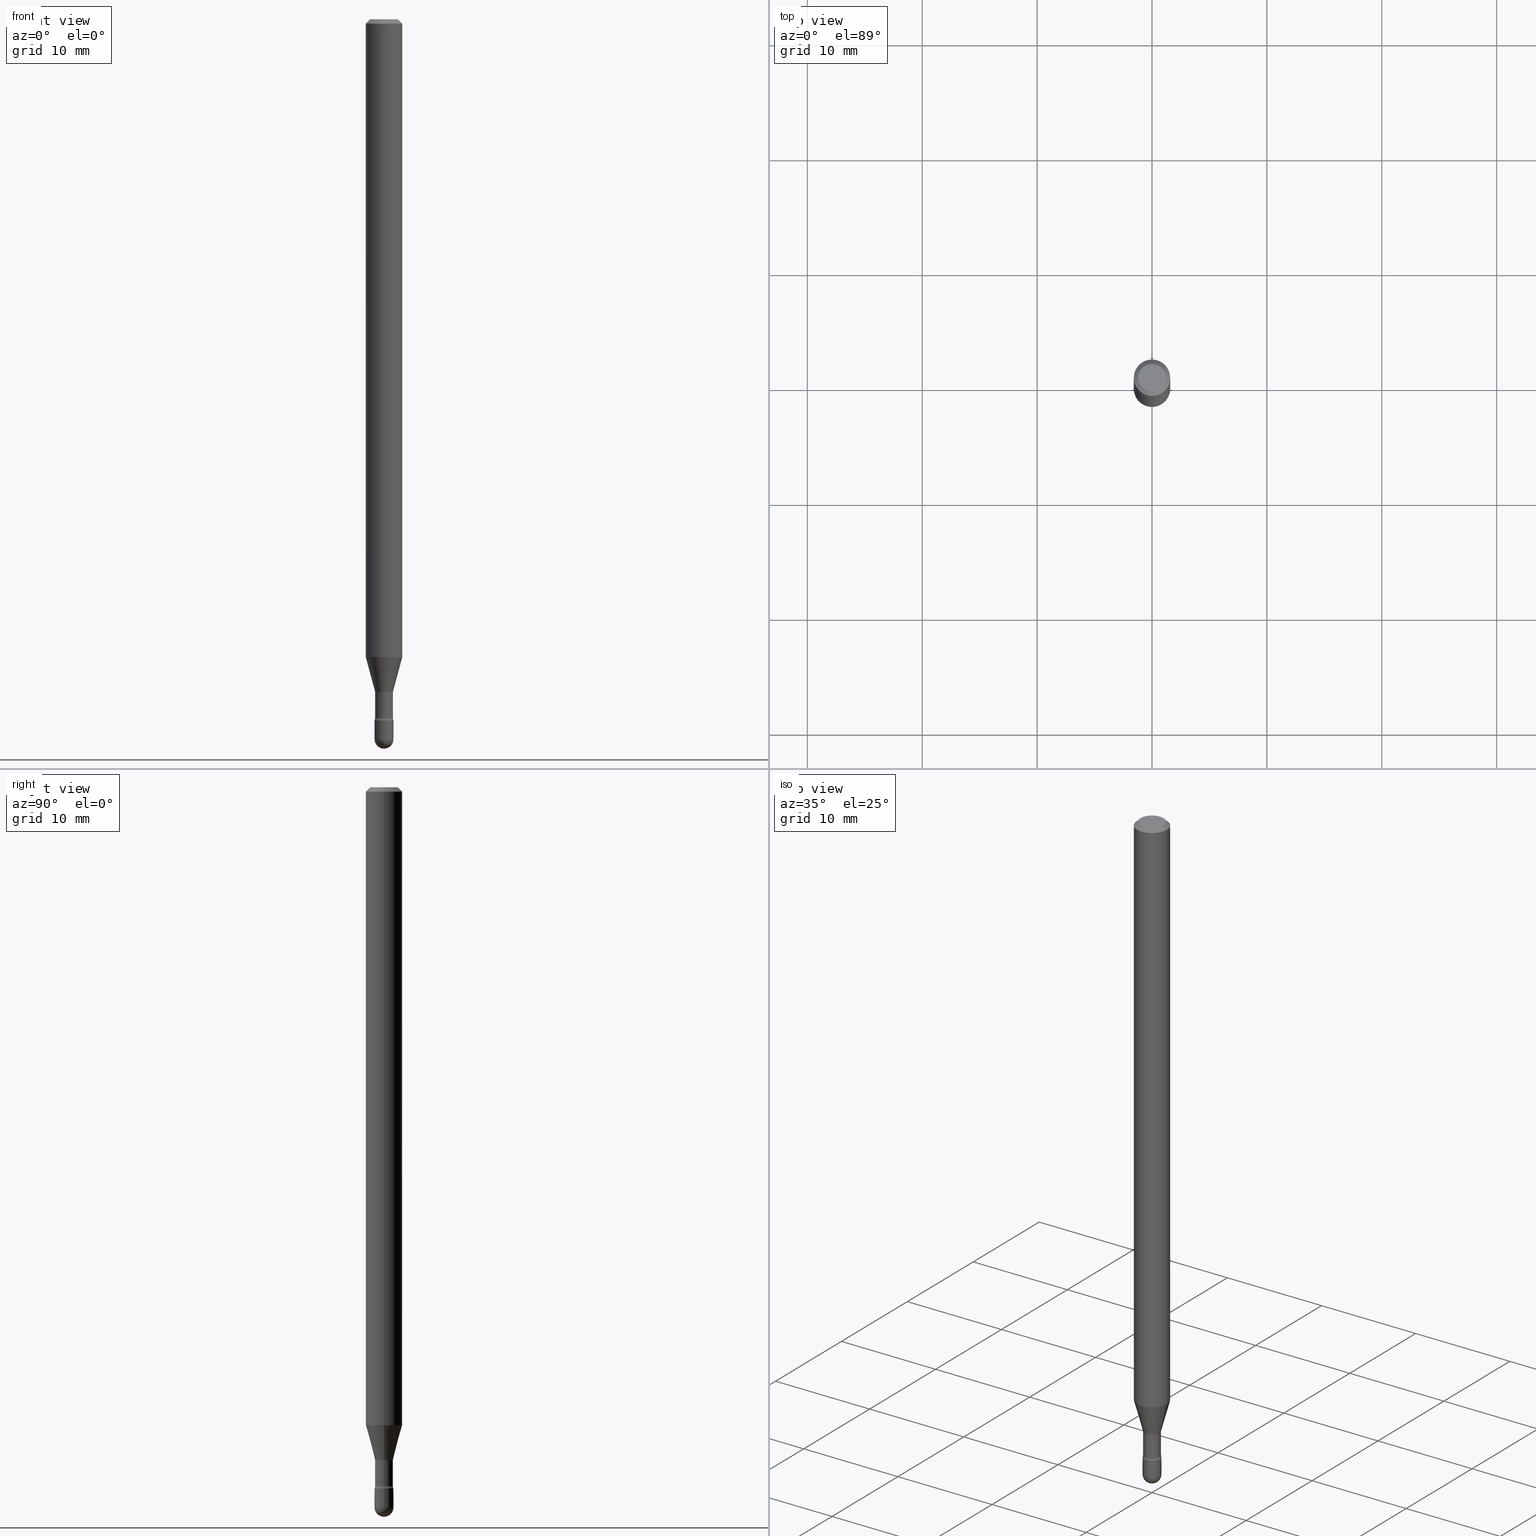
[diagram: canonical four-view strip — front | top / right | iso, engineering-drawing reading convention]
A machine part, canonical four-view strip (front | top / right | iso — engineering-drawing reading convention). The complete STEP part file that produces these views, byte-faithful:
ISO-10303-21;
HEADER;
FILE_DESCRIPTION (( 'STEP AP203' ),
    '1' );
FILE_NAME ('09508.STEP',
    '2024-04-10T00:01:44',
    ( '' ),
    ( '' ),
    'SwSTEP 2.0',
    'SolidWorks 2023',
    '' );
FILE_SCHEMA (( 'CONFIG_CONTROL_DESIGN' ));
ENDSEC;

DATA;
#1 = ORIENTED_EDGE ( 'NONE', *, *, #547, .F. ) ;
#2 = SECURITY_CLASSIFICATION ( '', '', #159 ) ;
#3 = CARTESIAN_POINT ( 'NONE',  ( -0.03249999999999995948, -8.155611786779205250E-15, -2.402000000000000135 ) ) ;
#4 = EDGE_CURVE ( 'NONE', #524, #161, #263, .T. ) ;
#5 = DIRECTION ( 'NONE',  ( -2.445468806185136877E-29, 3.491481338843145188E-15, 1.000000000000000000 ) ) ;
#6 = VERTEX_POINT ( 'NONE', #3 ) ;
#7 = FACE_OUTER_BOUND ( 'NONE', #240, .T. ) ;
#8 = TOROIDAL_SURFACE ( 'NONE', #321, 0.04555000000000000021, 0.01500000000000002373 ) ;
#9 = CONICAL_SURFACE ( 'NONE', #374, 0.03106111260566398607, 0.2617993877991497409 ) ;
#10 = EDGE_CURVE ( 'NONE', #526, #367, #224, .T. ) ;
#11 = DIRECTION ( 'NONE',  ( 1.000000000000000000, -6.982962677686267499E-15, 4.876176775795936353E-29 ) ) ;
#12 = DIRECTION ( 'NONE',  ( -1.000000000000000000, 6.982962677686266711E-15, 0.000000000000000000 ) ) ;
#13 = DIRECTION ( 'NONE',  ( -2.445468806185136597E-29, 3.491481338843145583E-15, 1.000000000000000000 ) ) ;
#14 = PRODUCT_DEFINITION_SHAPE ( 'NONE', 'NONE',  #469 ) ;
#15 = CARTESIAN_POINT ( 'NONE',  ( 0.03055000000000004240, -2.133295098033140716E-16, 4.780733988912475916E-16 ) ) ;
#16 = DIRECTION ( 'NONE',  ( -2.445468806185136597E-29, 3.491481338843145583E-15, 1.000000000000000000 ) ) ;
#17 = ORIENTED_EDGE ( 'NONE', *, *, #371, .F. ) ;
#18 = EDGE_CURVE ( 'NONE', #112, #161, #554, .T. ) ;
#19 = AXIS2_PLACEMENT_3D ( 'NONE', #236, #285, #12 ) ;
#20 = AXIS2_PLACEMENT_3D ( 'NONE', #448, #449, #398 ) ;
#21 = VECTOR ( 'NONE', #127, 39.37007874015748143 ) ;
#22 = DIRECTION ( 'NONE',  ( 2.438088387897960049E-29, -3.491481338843145188E-15, -1.000000000000000000 ) ) ;
#23 = PERSON_AND_ORGANIZATION ( #212, #530 ) ;
#24 = CARTESIAN_POINT ( 'NONE',  ( 5.855929933387994717E-29, -8.360715962634647749E-15, -2.394604224178627838 ) ) ;
#25 = TOROIDAL_SURFACE ( 'NONE', #519, 0.04555000000000000715, 0.01499999999999992138 ) ;
#26 = EDGE_CURVE ( 'NONE', #392, #161, #287, .T. ) ;
#27 =( NAMED_UNIT ( * ) SI_UNIT ( $, .STERADIAN. ) SOLID_ANGLE_UNIT ( ) );
#28 = CARTESIAN_POINT ( 'NONE',  ( 0.03106111260566398607, -8.258103081672599750E-15, -2.303092501787273427 ) ) ;
#29 = CARTESIAN_POINT ( 'NONE',  ( 2.269462870248623692E-16, 0.03249999999999161199, -2.402000000000000135 ) ) ;
#30 = PERSON_AND_ORGANIZATION ( #212, #530 ) ;
#31 = ORIENTED_EDGE ( 'NONE', *, *, #4, .T. ) ;
#32 = DIRECTION ( 'NONE',  ( 1.000000000000000000, -6.982962677686265922E-15, 4.876176775795935793E-29 ) ) ;
#33 = ORIENTED_EDGE ( 'NONE', *, *, #4, .F. ) ;
#34 = ADVANCED_FACE ( 'NONE', ( #75 ), #416, .F. ) ;
#35 = CARTESIAN_POINT ( 'NONE',  ( 0.03249999999999995948, -8.613484462926039396E-15, -2.402000000000000135 ) ) ;
#36 = APPROVAL_STATUS ( 'not_yet_approved' ) ;
#37 = CIRCLE ( 'NONE', #319, 0.03250000000000000111 ) ;
#38 = CARTESIAN_POINT ( 'NONE',  ( 5.855929933387994717E-29, -8.360715962634647749E-15, -2.394604224178627838 ) ) ;
#39 = AXIS2_PLACEMENT_3D ( 'NONE', #402, #498, #198 ) ;
#40 = DIRECTION ( 'NONE',  ( -2.445468806185136597E-29, 3.491481338843145583E-15, 1.000000000000000000 ) ) ;
#41 = FACE_OUTER_BOUND ( 'NONE', #375, .T. ) ;
#42 = ORIENTED_EDGE ( 'NONE', *, *, #559, .T. ) ;
#43 = ORIENTED_EDGE ( 'NONE', *, *, #534, .T. ) ;
#44 = ORIENTED_EDGE ( 'NONE', *, *, #559, .F. ) ;
#45 = ORIENTED_EDGE ( 'NONE', *, *, #223, .F. ) ;
#46 = EDGE_CURVE ( 'NONE', #483, #528, #351, .T. ) ;
#47 = EDGE_LOOP ( 'NONE', ( #428, #139, #17, #220, #160 ) ) ;
#48 = FACE_OUTER_BOUND ( 'NONE', #516, .T. ) ;
#49 = EDGE_CURVE ( 'NONE', #352, #526, #387, .T. ) ;
#50 = AXIS2_PLACEMENT_3D ( 'NONE', #90, #221, #260 ) ;
#51 = APPLICATION_CONTEXT ( 'configuration controlled 3d designs of mechanical parts and assemblies' ) ;
#52 = CARTESIAN_POINT ( 'NONE',  ( -0.04555000000000000715, -8.037063746495922261E-15, -2.394604224178627838 ) ) ;
#53 = CARTESIAN_POINT ( 'NONE',  ( 0.000000000000000000, 0.000000000000000000, 0.000000000000000000 ) ) ;
#54 = DIRECTION ( 'NONE',  ( -2.445468806185136597E-29, 3.491481338843145583E-15, 1.000000000000000000 ) ) ;
#55 = CARTESIAN_POINT ( 'NONE',  ( 6.115061660682758489E-29, -8.726713296059249645E-15, -2.500000000000000000 ) ) ;
#56 = AXIS2_PLACEMENT_3D ( 'NONE', #52, #238, #401 ) ;
#57 = AXIS2_PLACEMENT_3D ( 'NONE', #119, #40, #345 ) ;
#58 = APPROVAL_PERSON_ORGANIZATION ( #23, #522, #109 ) ;
#59 = APPLICATION_PROTOCOL_DEFINITION ( 'international standard', 'config_control_design', 1994, #289 ) ;
#60 = CARTESIAN_POINT ( 'NONE',  ( -2.309263891219726642E-16, -0.03250000000000868861, -2.467499999999999805 ) ) ;
#61 = CARTESIAN_POINT ( 'NONE',  ( 6.034194279261823970E-29, -8.615230203595461689E-15, -2.467499999999999805 ) ) ;
#62 = FACE_OUTER_BOUND ( 'NONE', #456, .T. ) ;
#63 = EDGE_CURVE ( 'NONE', #337, #258, #302, .T. ) ;
#64 = COORDINATED_UNIVERSAL_TIME_OFFSET ( 5, 0, .BEHIND. ) ;
#65 = DIRECTION ( 'NONE',  ( 1.000000000000000000, -6.982962677686258033E-15, 0.000000000000000000 ) ) ;
#66 = PLANE ( 'NONE',  #452 ) ;
#67 = PRODUCT_DEFINITION_FORMATION_WITH_SPECIFIED_SOURCE ( 'ANY', '', #279, .NOT_KNOWN. ) ;
#68 = AXIS2_PLACEMENT_3D ( 'NONE', #566, #138, #489 ) ;
#69 = ORIENTED_EDGE ( 'NONE', *, *, #515, .F. ) ;
#70 = FACE_OUTER_BOUND ( 'NONE', #491, .T. ) ;
#71 = DIRECTION ( 'NONE',  ( 0.000000000000000000, 0.000000000000000000, 1.000000000000000000 ) ) ;
#72 = EDGE_CURVE ( 'NONE', #161, #392, #411, .T. ) ;
#73 = ORIENTED_EDGE ( 'NONE', *, *, #102, .T. ) ;
#74 = CARTESIAN_POINT ( 'NONE',  ( -0.06250000000000000000, -7.187454451463180448E-15, -2.185760976698174485 ) ) ;
#75 = FACE_OUTER_BOUND ( 'NONE', #227, .T. ) ;
#76 = DIRECTION ( 'NONE',  ( -2.445468806185136597E-29, 3.491481338843145583E-15, 1.000000000000000000 ) ) ;
#77 = CALENDAR_DATE ( 2024, 9, 4 ) ;
#78 = VERTEX_POINT ( 'NONE', #180 ) ;
#79 = DIRECTION ( 'NONE',  ( 1.000000000000000000, -6.982962677686262766E-15, 0.000000000000000000 ) ) ;
#80 = AXIS2_PLACEMENT_3D ( 'NONE', #257, #308, #560 ) ;
#81 = VECTOR ( 'NONE', #86, 39.37007874015748143 ) ;
#82 = ORIENTED_EDGE ( 'NONE', *, *, #539, .F. ) ;
#83 = DIRECTION ( 'NONE',  ( -1.000000000000000000, 6.982962677686266711E-15, -4.883557194083112901E-29 ) ) ;
#84 = ORIENTED_EDGE ( 'NONE', *, *, #49, .F. ) ;
#85 = EDGE_CURVE ( 'NONE', #367, #524, #116, .T. ) ;
#86 = DIRECTION ( 'NONE',  ( -2.445468806185136877E-29, 3.491481338843145188E-15, 1.000000000000000000 ) ) ;
#87 = EDGE_LOOP ( 'NONE', ( #455, #188, #424, #555 ) ) ;
#88 = ORIENTED_EDGE ( 'NONE', *, *, #140, .F. ) ;
#89 = DESIGN_CONTEXT ( 'detailed design', #289, 'design' ) ;
#90 = CARTESIAN_POINT ( 'NONE',  ( 2.023552857353652888E-45, -2.889097183224559242E-31, -8.274703207154537794E-17 ) ) ;
#91 = DIRECTION ( 'NONE',  ( -6.982962677686266711E-15, -1.000000000000000000, 3.491481338843145583E-15 ) ) ;
#92 = VECTOR ( 'NONE', #494, 39.37007874015748143 ) ;
#93 = APPROVAL_PERSON_ORGANIZATION ( #407, #121, #467 ) ;
#94 = AXIS2_PLACEMENT_3D ( 'NONE', #552, #301, #129 ) ;
#95 = EDGE_LOOP ( 'NONE', ( #84, #249, #126, #561 ) ) ;
#96 = DIRECTION ( 'NONE',  ( -2.445468806185136597E-29, 3.491481338843145583E-15, 1.000000000000000000 ) ) ;
#97 = MECHANICAL_CONTEXT ( 'NONE', #51, 'mechanical' ) ;
#98 = EDGE_CURVE ( 'NONE', #394, #337, #433, .T. ) ;
#99 = CARTESIAN_POINT ( 'NONE',  ( -0.04749999999999999362, 3.578768372314208041E-16, -8.274703207154778150E-17 ) ) ;
#100 = FACE_OUTER_BOUND ( 'NONE', #87, .T. ) ;
#101 = CLOSED_SHELL ( 'NONE', ( #132, #397, #427, #318, #194 ) ) ;
#102 = EDGE_CURVE ( 'NONE', #166, #112, #451, .T. ) ;
#103 = ORIENTED_EDGE ( 'NONE', *, *, #146, .F. ) ;
#104 = ORIENTED_EDGE ( 'NONE', *, *, #403, .T. ) ;
#105 = AXIS2_PLACEMENT_3D ( 'NONE', #167, #76, #79 ) ;
#106 = AXIS2_PLACEMENT_3D ( 'NONE', #354, #185, #426 ) ;
#107 = ADVANCED_FACE ( 'NONE', ( #48 ), #288, .T. ) ;
#108 = DIRECTION ( 'NONE',  ( -2.445468806185136597E-29, 3.491481338843145583E-15, 1.000000000000000000 ) ) ;
#109 = APPROVAL_ROLE ( '' ) ;
#110 = DIRECTION ( 'NONE',  ( -2.445468806185136597E-29, 3.491481338843145583E-15, 1.000000000000000000 ) ) ;
#111 = CARTESIAN_POINT ( 'NONE',  ( 0.06250000000000000000, -4.364351673553899931E-16, 4.780733988912490708E-16 ) ) ;
#112 = VERTEX_POINT ( 'NONE', #99 ) ;
#113 = FACE_OUTER_BOUND ( 'NONE', #230, .T. ) ;
#114 = AXIS2_PLACEMENT_3D ( 'NONE', #349, #91, #406 ) ;
#115 = APPROVAL_STATUS ( 'not_yet_approved' ) ;
#116 = CIRCLE ( 'NONE', #182, 0.06250000000000000000 ) ;
#117 = ORIENTED_EDGE ( 'NONE', *, *, #504, .T. ) ;
#118 = DIRECTION ( 'NONE',  ( 1.000000000000000000, -6.982962677686264344E-15, 0.000000000000000000 ) ) ;
#119 = CARTESIAN_POINT ( 'NONE',  ( 3.668203209277725232E-31, -5.237222008264747365E-17, -0.01500000000000008271 ) ) ;
#120 = CARTESIAN_POINT ( 'NONE',  ( 0.06250000000000000000, -8.067978828668636311E-15, -2.185760976698174485 ) ) ;
#121 = APPROVAL ( #115, 'UNSPECIFIED' ) ;
#122 = ORIENTED_EDGE ( 'NONE', *, *, #46, .F. ) ;
#123 = DATE_AND_TIME ( #303, #216 ) ;
#124 = ORIENTED_EDGE ( 'NONE', *, *, #85, .F. ) ;
#125 = CARTESIAN_POINT ( 'NONE',  ( 0.03250000000000000111, -8.727830476773152219E-15, -2.467499999999999805 ) ) ;
#126 = ORIENTED_EDGE ( 'NONE', *, *, #140, .T. ) ;
#127 = DIRECTION ( 'NONE',  ( -0.2588190451025210725, 5.211531920934548675E-15, 0.9659258262890682012 ) ) ;
#128 = VECTOR ( 'NONE', #5, 39.37007874015748143 ) ;
#129 = DIRECTION ( 'NONE',  ( 1.000000000000000000, -6.982962677686287221E-15, 0.000000000000000000 ) ) ;
#130 = CIRCLE ( 'NONE', #442, 0.01500000000000001853 ) ;
#131 = CARTESIAN_POINT ( 'NONE',  ( -0.06250000000000000000, 4.440892098500642925E-16, 4.780733988912429571E-16 ) ) ;
#132 = ADVANCED_FACE ( 'NONE', ( #282 ), #233, .T. ) ;
#133 = CARTESIAN_POINT ( 'NONE',  ( 0.03250000000000000111, -8.613484462926039396E-15, -2.402000000000000135 ) ) ;
#134 = CARTESIAN_POINT ( 'NONE',  ( -0.03250000000000000111, 2.309263891220325683E-16, -1.598653904332844407E-30 ) ) ;
#135 = VERTEX_POINT ( 'NONE', #325 ) ;
#136 = DIRECTION ( 'NONE',  ( 1.000000000000000000, -6.982962677686264344E-15, 0.000000000000000000 ) ) ;
#137 = ORIENTED_EDGE ( 'NONE', *, *, #504, .F. ) ;
#138 = DIRECTION ( 'NONE',  ( -2.445468806185136597E-29, 3.491481338843145583E-15, 1.000000000000000000 ) ) ;
#139 = ORIENTED_EDGE ( 'NONE', *, *, #98, .T. ) ;
#140 = EDGE_CURVE ( 'NONE', #281, #135, #479, .T. ) ;
#141 = CIRCLE ( 'NONE', #94, 0.03250000000000000111 ) ;
#142 = AXIS2_PLACEMENT_3D ( 'NONE', #459, #413, #527 ) ;
#143 = AXIS2_PLACEMENT_3D ( 'NONE', #24, #505, #558 ) ;
#144 = ORIENTED_EDGE ( 'NONE', *, *, #72, .T. ) ;
#145 = DIRECTION ( 'NONE',  ( -2.445468806185136877E-29, 3.491481338843145188E-15, 1.000000000000000000 ) ) ;
#146 = EDGE_CURVE ( 'NONE', #135, #281, #252, .T. ) ;
#147 = FACE_OUTER_BOUND ( 'NONE', #181, .T. ) ;
#148 = AXIS2_PLACEMENT_3D ( 'NONE', #482, #209, #276 ) ;
#149 = ORIENTED_EDGE ( 'NONE', *, *, #63, .F. ) ;
#150 = DIRECTION ( 'NONE',  ( 1.000000000000000000, -6.982962677686264344E-15, 0.000000000000000000 ) ) ;
#151 = ORIENTED_EDGE ( 'NONE', *, *, #477, .T. ) ;
#152 = EDGE_CURVE ( 'NONE', #483, #78, #361, .T. ) ;
#153 = TOROIDAL_SURFACE ( 'NONE', #291, 0.04555000000000000021, 0.01500000000000002373 ) ;
#154 = CIRCLE ( 'NONE', #106, 0.03250000000000000111 ) ;
#155 = DIRECTION ( 'NONE',  ( -7.105427357601001859E-15, -1.000000000000000000, 0.000000000000000000 ) ) ;
#156 = CC_DESIGN_PERSON_AND_ORGANIZATION_ASSIGNMENT ( #294, #404, ( #279 ) ) ;
#157 = ORIENTED_EDGE ( 'NONE', *, *, #72, .F. ) ;
#158 = CARTESIAN_POINT ( 'NONE',  ( 5.874016072456698366E-29, -8.386538175901236044E-15, -2.402000000000000135 ) ) ;
#159 = SECURITY_CLASSIFICATION_LEVEL ( 'unclassified' ) ;
#160 = ORIENTED_EDGE ( 'NONE', *, *, #547, .T. ) ;
#161 = VERTEX_POINT ( 'NONE', #536 ) ;
#162 = DIRECTION ( 'NONE',  ( 1.000000000000000000, -6.982962677686258033E-15, 0.000000000000000000 ) ) ;
#163 = APPROVAL_DATE_TIME ( #207, #121 ) ;
#164 = DIRECTION ( 'NONE',  ( 1.000000000000000000, -6.982962677686267499E-15, 4.884662768193073002E-29 ) ) ;
#165 = ORIENTED_EDGE ( 'NONE', *, *, #152, .F. ) ;
#166 = VERTEX_POINT ( 'NONE', #497 ) ;
#167 = CARTESIAN_POINT ( 'NONE',  ( 5.345210286292143874E-29, -7.631543661313244641E-15, -2.185760976698174485 ) ) ;
#168 = AXIS2_PLACEMENT_3D ( 'NONE', #382, #306, #313 ) ;
#169 = LENGTH_MEASURE_WITH_UNIT ( LENGTH_MEASURE( 0.02539999999999999897 ), #563 );
#170 = EDGE_LOOP ( 'NONE', ( #33, #104, #117, #157 ) ) ;
#171 = CARTESIAN_POINT ( 'NONE',  ( -0.03250000000000000111, -8.269957800626316495E-15, -2.467499999999999805 ) ) ;
#172 = APPROVAL_DATE_TIME ( #218, #522 ) ;
#173 = ORIENTED_EDGE ( 'NONE', *, *, #176, .F. ) ;
#174 = CARTESIAN_POINT ( 'NONE',  ( -0.03055000000000008750, -8.149628471819570133E-15, -2.394604224178627838 ) ) ;
#175 = CARTESIAN_POINT ( 'NONE',  ( 5.874016072456698366E-29, -8.386538175901236044E-15, -2.402000000000000135 ) ) ;
#176 = EDGE_CURVE ( 'NONE', #78, #394, #512, .T. ) ;
#177 = EDGE_LOOP ( 'NONE', ( #122, #259, #1, #69 ) ) ;
#178 = CARTESIAN_POINT ( 'NONE',  ( 5.632140870879662912E-29, -8.041204491619838078E-15, -2.303092501787273427 ) ) ;
#179 = ORIENTED_EDGE ( 'NONE', *, *, #309, .T. ) ;
#180 = CARTESIAN_POINT ( 'NONE',  ( 2.269462870248644893E-16, 0.03249999999999145933, -2.467499999999999805 ) ) ;
#181 = EDGE_LOOP ( 'NONE', ( #333, #43, #557, #425, #149 ) ) ;
#182 = AXIS2_PLACEMENT_3D ( 'NONE', #350, #96, #379 ) ;
#183 = CARTESIAN_POINT ( 'NONE',  ( 0.03106111260566398607, -8.258103081672599750E-15, -2.303092501787273427 ) ) ;
#184 = ORIENTED_EDGE ( 'NONE', *, *, #330, .T. ) ;
#185 = DIRECTION ( 'NONE',  ( -2.445468806185136597E-29, 3.491481338843145583E-15, 1.000000000000000000 ) ) ;
#186 = EDGE_CURVE ( 'NONE', #310, #135, #363, .T. ) ;
#187 = CARTESIAN_POINT ( 'NONE',  ( 3.668203209277725232E-31, -5.237222008264747365E-17, -0.01500000000000008271 ) ) ;
#188 = ORIENTED_EDGE ( 'NONE', *, *, #283, .T. ) ;
#189 = CC_DESIGN_DATE_AND_TIME_ASSIGNMENT ( #123, #335, ( #469 ) ) ;
#190 = CIRCLE ( 'NONE', #326, 0.03250000000000000111 ) ;
#191 = CC_DESIGN_SECURITY_CLASSIFICATION ( #2, ( #67 ) ) ;
#192 = AXIS2_PLACEMENT_3D ( 'NONE', #187, #358, #312 ) ;
#193 = SPHERICAL_SURFACE ( 'NONE', #400, 0.03250000000000013295 ) ;
#194 = ADVANCED_FACE ( 'NONE', ( #147 ), #496, .T. ) ;
#195 = CARTESIAN_POINT ( 'NONE',  ( 6.034194279261823970E-29, -8.615230203595461689E-15, -2.467499999999999805 ) ) ;
#196 = AXIS2_PLACEMENT_3D ( 'NONE', #471, #474, #334 ) ;
#197 = AXIS2_PLACEMENT_3D ( 'NONE', #195, #340, #565 ) ;
#198 = DIRECTION ( 'NONE',  ( 1.000000000000000000, -6.982962677686264344E-15, 0.000000000000000000 ) ) ;
#199 = EDGE_CURVE ( 'NONE', #310, #438, #542, .T. ) ;
#200 = ORIENTED_EDGE ( 'NONE', *, *, #403, .F. ) ;
#201 = AXIS2_PLACEMENT_3D ( 'NONE', #533, #529, #485 ) ;
#202 = CARTESIAN_POINT ( 'NONE',  ( -0.03106111260566398607, -7.503978231908604421E-15, -2.303092501787273427 ) ) ;
#203 = CLOSED_SHELL ( 'NONE', ( #360, #342, #393, #299, #453, #237, #486, #381, #210, #34, #445, #405, #107, #493 ) ) ;
#204 = COORDINATED_UNIVERSAL_TIME_OFFSET ( 5, 0, .BEHIND. ) ;
#205 = DIRECTION ( 'NONE',  ( -2.445468806185136877E-29, 3.491481338843145188E-15, 1.000000000000000000 ) ) ;
#206 = DIRECTION ( 'NONE',  ( 6.982962677686266711E-15, 1.000000000000000000, 0.000000000000000000 ) ) ;
#207 = DATE_AND_TIME ( #376, #242 ) ;
#208 = ORIENTED_EDGE ( 'NONE', *, *, #477, .F. ) ;
#209 = DIRECTION ( 'NONE',  ( -2.445468806185136597E-29, 3.491481338843145583E-15, 1.000000000000000000 ) ) ;
#210 = ADVANCED_FACE ( 'NONE', ( #7 ), #421, .T. ) ;
#211 = ORIENTED_EDGE ( 'NONE', *, *, #85, .T. ) ;
#212 = PERSON ( 'UNSPECIFIED', 'UNSPECIFIED', 'UNSPECIFIED', ('UNSPECIFIED'), ('UNSPECIFIED'), ('UNSPECIFIED') ) ;
#213 = COORDINATED_UNIVERSAL_TIME_OFFSET ( 5, 0, .BEHIND. ) ;
#214 = CARTESIAN_POINT ( 'NONE',  ( 3.316907271900976096E-16, 0.04749999999999999362, 3.181781981480094004E-17 ) ) ;
#215 = DIRECTION ( 'NONE',  ( 1.000000000000000000, -6.982962677686265922E-15, 4.876176775795935793E-29 ) ) ;
#216 = LOCAL_TIME ( 20, 1, 44.00000000000000000, #472 ) ;
#217 = ORIENTED_EDGE ( 'NONE', *, *, #26, .F. ) ;
#218 = DATE_AND_TIME ( #390, #243 ) ;
#219 = CIRCLE ( 'NONE', #80, 0.03106111260566398607 ) ;
#220 = ORIENTED_EDGE ( 'NONE', *, *, #322, .F. ) ;
#221 = DIRECTION ( 'NONE',  ( -2.445468806185136597E-29, 3.491481338843145583E-15, 1.000000000000000000 ) ) ;
#222 = LINE ( 'NONE', #518, #21 ) ;
#223 = EDGE_CURVE ( 'NONE', #438, #6, #154, .T. ) ;
#224 = LINE ( 'NONE', #183, #366 ) ;
#225 = DIRECTION ( 'NONE',  ( -1.000000000000000000, 7.105427357600982137E-15, 0.000000000000000000 ) ) ;
#226 = ORIENTED_EDGE ( 'NONE', *, *, #63, .T. ) ;
#227 = EDGE_LOOP ( 'NONE', ( #476, #73 ) ) ;
#228 = DIRECTION ( 'NONE',  ( 1.000000000000000000, -6.982962677686266711E-15, 4.852736867747366207E-29 ) ) ;
#229 = UNCERTAINTY_MEASURE_WITH_UNIT (LENGTH_MEASURE( 1.000000000000000082E-05 ), #269, 'distance_accuracy_value', 'NONE');
#230 = EDGE_LOOP ( 'NONE', ( #165, #280, #465, #173 ) ) ;
#231 = ORIENTED_EDGE ( 'NONE', *, *, #223, .T. ) ;
#232 = DIRECTION ( 'NONE',  ( -2.445468806185136597E-29, 3.491481338843145583E-15, 1.000000000000000000 ) ) ;
#233 = CYLINDRICAL_SURFACE ( 'NONE', #495, 0.03250000000000000111 ) ;
#234 = AXIS2_PLACEMENT_3D ( 'NONE', #38, #262, #463 ) ;
#235 = VECTOR ( 'NONE', #353, 39.37007874015748143 ) ;
#236 = CARTESIAN_POINT ( 'NONE',  ( 3.668203209277725232E-31, -5.237222008264747365E-17, -0.01500000000000008271 ) ) ;
#237 = ADVANCED_FACE ( 'NONE', ( #265 ), #9, .T. ) ;
#238 = DIRECTION ( 'NONE',  ( 7.105427357601001859E-15, 1.000000000000000000, -3.491481338843145583E-15 ) ) ;
#239 = DIRECTION ( 'NONE',  ( 1.000000000000000000, -6.982962677686267499E-15, 4.876176775795936353E-29 ) ) ;
#240 = EDGE_LOOP ( 'NONE', ( #275, #270, #305, #144 ) ) ;
#241 = AXIS2_PLACEMENT_3D ( 'NONE', #553, #457, #118 ) ;
#242 = LOCAL_TIME ( 20, 1, 44.00000000000000000, #204 ) ;
#243 = LOCAL_TIME ( 20, 1, 44.00000000000000000, #213 ) ;
#244 = LINE ( 'NONE', #454, #92 ) ;
#245 = CC_DESIGN_PERSON_AND_ORGANIZATION_ASSIGNMENT ( #300, #458, ( #67 ) ) ;
#246 = DIRECTION ( 'NONE',  ( 1.000000000000000000, -6.982962677686263555E-15, 4.883557194083112340E-29 ) ) ;
#247 = DATE_TIME_ROLE ( 'classification_date' ) ;
#248 =( NAMED_UNIT ( * ) PLANE_ANGLE_UNIT ( ) SI_UNIT ( $, .RADIAN. ) );
#249 = ORIENTED_EDGE ( 'NONE', *, *, #253, .T. ) ;
#250 = DIRECTION ( 'NONE',  ( 1.000000000000000000, -6.982962677686287221E-15, 0.000000000000000000 ) ) ;
#251 = CARTESIAN_POINT ( 'NONE',  ( 0.06250000000000000000, -4.888073874380391431E-16, -0.01500000000000008271 ) ) ;
#252 = CIRCLE ( 'NONE', #434, 0.03055000000000000077 ) ;
#253 = EDGE_CURVE ( 'NONE', #352, #281, #130, .T. ) ;
#254 = CARTESIAN_POINT ( 'NONE',  ( 6.034194279261823970E-29, -8.615230203595461689E-15, -2.467499999999999805 ) ) ;
#255 = SPHERICAL_SURFACE ( 'NONE', #373, 0.03250000000000013295 ) ;
#256 = SHAPE_DEFINITION_REPRESENTATION ( #14, #520 ) ;
#257 = CARTESIAN_POINT ( 'NONE',  ( 5.632140870879662912E-29, -8.041204491619838078E-15, -2.303092501787273427 ) ) ;
#258 = VERTEX_POINT ( 'NONE', #133 ) ;
#259 = ORIENTED_EDGE ( 'NONE', *, *, #152, .T. ) ;
#260 = DIRECTION ( 'NONE',  ( 1.000000000000000000, -6.982962677686267499E-15, 4.884662768193073002E-29 ) ) ;
#261 = DIRECTION ( 'NONE',  ( -2.445468806185136597E-29, 3.491481338843145583E-15, 1.000000000000000000 ) ) ;
#262 = DIRECTION ( 'NONE',  ( -2.445468806185136597E-29, 3.491481338843145583E-15, 1.000000000000000000 ) ) ;
#263 = LINE ( 'NONE', #131, #235 ) ;
#264 = EDGE_CURVE ( 'NONE', #112, #166, #268, .T. ) ;
#265 = FACE_OUTER_BOUND ( 'NONE', #447, .T. ) ;
#266 = FACE_OUTER_BOUND ( 'NONE', #385, .T. ) ;
#267 = AXIS2_PLACEMENT_3D ( 'NONE', #254, #548, #250 ) ;
#268 = CIRCLE ( 'NONE', #50, 0.04749999999999999362 ) ;
#269 =( CONVERSION_BASED_UNIT ( 'INCH', #169 ) LENGTH_UNIT ( ) NAMED_UNIT ( #544 ) );
#270 = ORIENTED_EDGE ( 'NONE', *, *, #264, .F. ) ;
#271 = FACE_OUTER_BOUND ( 'NONE', #431, .T. ) ;
#272 = ORIENTED_EDGE ( 'NONE', *, *, #146, .T. ) ;
#273 = VERTEX_POINT ( 'NONE', #174 ) ;
#274 = CARTESIAN_POINT ( 'NONE',  ( 2.023552857353652888E-45, -2.889097183224559242E-31, -8.274703207154537794E-17 ) ) ;
#275 = ORIENTED_EDGE ( 'NONE', *, *, #283, .F. ) ;
#276 = DIRECTION ( 'NONE',  ( 1.000000000000000000, -6.982962677686266711E-15, 0.000000000000000000 ) ) ;
#277 = VECTOR ( 'NONE', #145, 39.37007874015748143 ) ;
#278 = AXIS2_PLACEMENT_3D ( 'NONE', #274, #430, #164 ) ;
#279 = PRODUCT ( '09508', '09508', '', ( #97 ) ) ;
#280 = ORIENTED_EDGE ( 'NONE', *, *, #46, .T. ) ;
#281 = VERTEX_POINT ( 'NONE', #517 ) ;
#282 = FACE_OUTER_BOUND ( 'NONE', #47, .T. ) ;
#283 = EDGE_CURVE ( 'NONE', #166, #392, #316, .T. ) ;
#284 = CARTESIAN_POINT ( 'NONE',  ( 0.000000000000000000, 0.000000000000000000, 0.000000000000000000 ) ) ;
#285 = DIRECTION ( 'NONE',  ( 2.445468806185136597E-29, -3.491481338843145583E-15, -1.000000000000000000 ) ) ;
#286 = AXIS2_PLACEMENT_3D ( 'NONE', #29, #315, #215 ) ;
#287 = CIRCLE ( 'NONE', #57, 0.06250000000000000000 ) ;
#288 = CYLINDRICAL_SURFACE ( 'NONE', #293, 0.03055000000000004240 ) ;
#289 = APPLICATION_CONTEXT ( 'configuration controlled 3d designs of mechanical parts and assemblies' ) ;
#290 = EDGE_CURVE ( 'NONE', #310, #273, #365, .T. ) ;
#291 = AXIS2_PLACEMENT_3D ( 'NONE', #550, #332, #556 ) ;
#292 = LOCAL_TIME ( 20, 1, 44.00000000000000000, #541 ) ;
#293 = AXIS2_PLACEMENT_3D ( 'NONE', #441, #54, #444 ) ;
#294 = PERSON_AND_ORGANIZATION ( #212, #530 ) ;
#295 = ORIENTED_EDGE ( 'NONE', *, *, #290, .F. ) ;
#296 = CALENDAR_DATE ( 2024, 9, 4 ) ;
#297 = ORIENTED_EDGE ( 'NONE', *, *, #199, .F. ) ;
#298 = FACE_OUTER_BOUND ( 'NONE', #346, .T. ) ;
#299 = ADVANCED_FACE ( 'NONE', ( #100 ), #341, .T. ) ;
#300 = PERSON_AND_ORGANIZATION ( #212, #530 ) ;
#301 = DIRECTION ( 'NONE',  ( -2.445468806185136597E-29, 3.491481338843145583E-15, 1.000000000000000000 ) ) ;
#302 = CIRCLE ( 'NONE', #68, 0.03250000000000000111 ) ;
#303 = CALENDAR_DATE ( 2024, 9, 4 ) ;
#304 = APPLICATION_PROTOCOL_DEFINITION ( 'international standard', 'config_control_design', 1994, #51 ) ;
#305 = ORIENTED_EDGE ( 'NONE', *, *, #18, .T. ) ;
#306 = DIRECTION ( 'NONE',  ( -2.445468806185136597E-29, 3.491481338843145583E-15, 1.000000000000000000 ) ) ;
#307 = PERSON_AND_ORGANIZATION_ROLE ( 'creator' ) ;
#308 = DIRECTION ( 'NONE',  ( -2.445468806185136597E-29, 3.491481338843145583E-15, 1.000000000000000000 ) ) ;
#309 = EDGE_CURVE ( 'NONE', #526, #135, #359, .T. ) ;
#310 = VERTEX_POINT ( 'NONE', #370 ) ;
#311 = ORIENTED_EDGE ( 'NONE', *, *, #499, .T. ) ;
#312 = DIRECTION ( 'NONE',  ( -1.000000000000000000, 6.982962677686266711E-15, 0.000000000000000000 ) ) ;
#313 = DIRECTION ( 'NONE',  ( 1.000000000000000000, -6.982962677686266711E-15, 4.963928874536987769E-29 ) ) ;
#314 = PERSON_AND_ORGANIZATION ( #212, #530 ) ;
#315 = DIRECTION ( 'NONE',  ( -2.438088387897960049E-29, 3.491481338843145188E-15, 1.000000000000000000 ) ) ;
#316 = LINE ( 'NONE', #399, #487 ) ;
#317 = DIRECTION ( 'NONE',  ( 7.105427357601001859E-15, 1.000000000000000000, -3.491481338843145583E-15 ) ) ;
#318 = ADVANCED_FACE ( 'NONE', ( #443 ), #193, .T. ) ;
#319 = AXIS2_PLACEMENT_3D ( 'NONE', #175, #261, #162 ) ;
#320 = AXIS2_PLACEMENT_3D ( 'NONE', #214, #22, #327 ) ;
#321 = AXIS2_PLACEMENT_3D ( 'NONE', #460, #415, #246 ) ;
#322 = EDGE_CURVE ( 'NONE', #564, #258, #244, .T. ) ;
#323 = APPROVAL ( #383, 'UNSPECIFIED' ) ;
#324 = DIRECTION ( 'NONE',  ( 6.982962677686266711E-15, 1.000000000000000000, 0.000000000000000000 ) ) ;
#325 = CARTESIAN_POINT ( 'NONE',  ( 0.03055000000000000077, -8.268088929414844289E-15, -2.306974787463811349 ) ) ;
#326 = AXIS2_PLACEMENT_3D ( 'NONE', #510, #331, #65 ) ;
#327 = DIRECTION ( 'NONE',  ( -1.000000000000000000, 6.982962677686265922E-15, -4.876176775795935793E-29 ) ) ;
#328 = PERSON_AND_ORGANIZATION_ROLE ( 'design_supplier' ) ;
#329 = CARTESIAN_POINT ( 'NONE',  ( 6.034194279261823970E-29, -8.615230203595461689E-15, -2.467499999999999805 ) ) ;
#330 = EDGE_CURVE ( 'NONE', #273, #6, #500, .T. ) ;
#331 = DIRECTION ( 'NONE',  ( -2.445468806185136597E-29, 3.491481338843145583E-15, 1.000000000000000000 ) ) ;
#332 = DIRECTION ( 'NONE',  ( -2.445468806185136597E-29, 3.491481338843145583E-15, 1.000000000000000000 ) ) ;
#333 = ORIENTED_EDGE ( 'NONE', *, *, #98, .F. ) ;
#334 = DIRECTION ( 'NONE',  ( 1.000000000000000000, -6.982962677686266711E-15, 4.852736867747366207E-29 ) ) ;
#335 = DATE_TIME_ROLE ( 'creation_date' ) ;
#336 = AXIS2_PLACEMENT_3D ( 'NONE', #468, #71, #435 ) ;
#337 = VERTEX_POINT ( 'NONE', #377 ) ;
#338 = AXIS2_PLACEMENT_3D ( 'NONE', #284, #439, #11 ) ;
#339 = PLANE ( 'NONE',  #286 ) ;
#340 = DIRECTION ( 'NONE',  ( 1.000000000000000000, -6.982962677686265922E-15, 4.883557194083112340E-29 ) ) ;
#341 = CONICAL_SURFACE ( 'NONE', #19, 0.06250000000000000000, 0.7853981633974483900 ) ;
#342 = ADVANCED_FACE ( 'NONE', ( #266 ), #513, .T. ) ;
#343 = ORIENTED_EDGE ( 'NONE', *, *, #253, .F. ) ;
#344 = FACE_OUTER_BOUND ( 'NONE', #170, .T. ) ;
#345 = DIRECTION ( 'NONE',  ( 1.000000000000000000, -6.982962677686266711E-15, 0.000000000000000000 ) ) ;
#346 = EDGE_LOOP ( 'NONE', ( #473, #355, #357, #200 ) ) ;
#347 = CARTESIAN_POINT ( 'NONE',  ( -0.04555000000000000021, -7.731107203472802387E-15, -2.306974787463811349 ) ) ;
#348 = TOROIDAL_SURFACE ( 'NONE', #143, 0.04555000000000000715, 0.01499999999999992138 ) ;
#349 = CARTESIAN_POINT ( 'NONE',  ( 0.04555000000000000021, -8.372833369580137659E-15, -2.306974787463811349 ) ) ;
#350 = CARTESIAN_POINT ( 'NONE',  ( 5.345210286292143874E-29, -7.631543661313244641E-15, -2.185760976698174485 ) ) ;
#351 = CIRCLE ( 'NONE', #396, 0.03250000000000013295 ) ;
#352 = VERTEX_POINT ( 'NONE', #202 ) ;
#353 = DIRECTION ( 'NONE',  ( -2.445468806185136877E-29, 3.491481338843145188E-15, 1.000000000000000000 ) ) ;
#354 = CARTESIAN_POINT ( 'NONE',  ( 5.874016072456698366E-29, -8.386538175901236044E-15, -2.402000000000000135 ) ) ;
#355 = ORIENTED_EDGE ( 'NONE', *, *, #49, .T. ) ;
#356 = DIRECTION ( 'NONE',  ( 0.7071067811865475727, -7.319954787623256045E-15, -0.7071067811865474617 ) ) ;
#357 = ORIENTED_EDGE ( 'NONE', *, *, #10, .T. ) ;
#358 = DIRECTION ( 'NONE',  ( 2.445468806185136597E-29, -3.491481338843145583E-15, -1.000000000000000000 ) ) ;
#359 = CIRCLE ( 'NONE', #114, 0.01500000000000001853 ) ;
#360 = ADVANCED_FACE ( 'NONE', ( #422 ), #153, .F. ) ;
#361 = CIRCLE ( 'NONE', #197, 0.03250000000000013295 ) ;
#362 = DIRECTION ( 'NONE',  ( 1.000000000000000000, -6.982962677686287221E-15, 0.000000000000000000 ) ) ;
#363 = LINE ( 'NONE', #15, #277 ) ;
#364 = CARTESIAN_POINT ( 'NONE',  ( 6.034194279261823970E-29, -8.615230203595461689E-15, -2.467499999999999805 ) ) ;
#365 = CIRCLE ( 'NONE', #201, 0.03055000000000008750 ) ;
#366 = VECTOR ( 'NONE', #380, 39.37007874015748143 ) ;
#367 = VERTEX_POINT ( 'NONE', #120 ) ;
#368 = ORIENTED_EDGE ( 'NONE', *, *, #436, .T. ) ;
#369 = MANIFOLD_SOLID_BREP ( 'Body-Move/Copy2[1]', #101 ) ;
#370 = CARTESIAN_POINT ( 'NONE',  ( 0.03055000000000008750, -8.574045472437964163E-15, -2.394604224178627838 ) ) ;
#371 = EDGE_CURVE ( 'NONE', #258, #337, #37, .T. ) ;
#372 = ORIENTED_EDGE ( 'NONE', *, *, #290, .T. ) ;
#373 = AXIS2_PLACEMENT_3D ( 'NONE', #545, #83, #206 ) ;
#374 = AXIS2_PLACEMENT_3D ( 'NONE', #178, #525, #136 ) ;
#375 = EDGE_LOOP ( 'NONE', ( #508, #295, #446, #231 ) ) ;
#376 = CALENDAR_DATE ( 2024, 9, 4 ) ;
#377 = CARTESIAN_POINT ( 'NONE',  ( -0.03250000000000000111, -8.269957800626316495E-15, -2.402000000000000135 ) ) ;
#378 = DIRECTION ( 'NONE',  ( 1.000000000000000000, -6.982962677686287221E-15, 0.000000000000000000 ) ) ;
#379 = DIRECTION ( 'NONE',  ( 1.000000000000000000, -6.982962677686262766E-15, 0.000000000000000000 ) ) ;
#380 = DIRECTION ( 'NONE',  ( 0.2588190451025210725, 1.565188264969624137E-15, 0.9659258262890682012 ) ) ;
#381 = ADVANCED_FACE ( 'NONE', ( #344 ), #388, .T. ) ;
#382 = CARTESIAN_POINT ( 'NONE',  ( -1.169113584055446105E-44, 1.669184350826100908E-30, 4.780733988912460139E-16 ) ) ;
#383 = APPROVAL_STATUS ( 'not_yet_approved' ) ;
#384 = CIRCLE ( 'NONE', #267, 0.03250000000000000111 ) ;
#385 = EDGE_LOOP ( 'NONE', ( #372, #151, #103, #503 ) ) ;
#386 = APPROVAL_PERSON_ORGANIZATION ( #551, #323, #514 ) ;
#387 = CIRCLE ( 'NONE', #142, 0.03106111260566398607 ) ;
#388 = CYLINDRICAL_SURFACE ( 'NONE', #196, 0.06250000000000000000 ) ;
#389 = CIRCLE ( 'NONE', #105, 0.06250000000000000000 ) ;
#390 = CALENDAR_DATE ( 2024, 9, 4 ) ;
#391 = CARTESIAN_POINT ( 'NONE',  ( 5.855929933387994717E-29, -8.360715962634647749E-15, -2.394604224178627838 ) ) ;
#392 = VERTEX_POINT ( 'NONE', #251 ) ;
#393 = ADVANCED_FACE ( 'NONE', ( #271 ), #348, .F. ) ;
#394 = VERTEX_POINT ( 'NONE', #171 ) ;
#395 = EDGE_LOOP ( 'NONE', ( #45, #461 ) ) ;
#396 = AXIS2_PLACEMENT_3D ( 'NONE', #61, #543, #155 ) ;
#397 = ADVANCED_FACE ( 'NONE', ( #113 ), #255, .T. ) ;
#398 = DIRECTION ( 'NONE',  ( 1.000000000000000000, -6.982962677686238312E-15, 0.000000000000000000 ) ) ;
#399 = CARTESIAN_POINT ( 'NONE',  ( 0.06250000000000000000, -4.811533449433681963E-16, -0.01500000000000008271 ) ) ;
#400 = AXIS2_PLACEMENT_3D ( 'NONE', #364, #537, #324 ) ;
#401 = DIRECTION ( 'NONE',  ( -1.000000000000000000, 7.105427357601027102E-15, 0.000000000000000000 ) ) ;
#402 = CARTESIAN_POINT ( 'NONE',  ( 5.641634879398335655E-29, -8.054759419611527876E-15, -2.306974787463811349 ) ) ;
#403 = EDGE_CURVE ( 'NONE', #524, #367, #389, .T. ) ;
#404 = PERSON_AND_ORGANIZATION_ROLE ( 'design_owner' ) ;
#405 = ADVANCED_FACE ( 'NONE', ( #41 ), #25, .F. ) ;
#406 = DIRECTION ( 'NONE',  ( 1.000000000000000000, -6.982962677686259611E-15, 0.000000000000000000 ) ) ;
#407 = PERSON_AND_ORGANIZATION ( #212, #530 ) ;
#408 = CC_DESIGN_PERSON_AND_ORGANIZATION_ASSIGNMENT ( #423, #307, ( #469 ) ) ;
#409 = CC_DESIGN_APPROVAL ( #323, ( #67 ) ) ;
#410 = LINE ( 'NONE', #111, #440 ) ;
#411 = CIRCLE ( 'NONE', #148, 0.06250000000000000000 ) ;
#412 = CARTESIAN_POINT ( 'NONE',  ( -1.169113584055446105E-44, 1.669184350826100908E-30, 4.780733988912460139E-16 ) ) ;
#413 = DIRECTION ( 'NONE',  ( -2.445468806185136597E-29, 3.491481338843145583E-15, 1.000000000000000000 ) ) ;
#414 = FACE_OUTER_BOUND ( 'NONE', #395, .T. ) ;
#415 = DIRECTION ( 'NONE',  ( -2.445468806185136597E-29, 3.491481338843145583E-15, 1.000000000000000000 ) ) ;
#416 = PLANE ( 'NONE',  #320 ) ;
#417 = CC_DESIGN_PERSON_AND_ORGANIZATION_ASSIGNMENT ( #30, #328, ( #67 ) ) ;
#418 = DATE_AND_TIME ( #77, #478 ) ;
#419 = CONICAL_SURFACE ( 'NONE', #241, 0.03106111260566398607, 0.2617993877991497409 ) ;
#420 = DIRECTION ( 'NONE',  ( -0.7071067811865475727, 2.468850131082257455E-15, -0.7071067811865474617 ) ) ;
#421 = CONICAL_SURFACE ( 'NONE', #192, 0.06250000000000000000, 0.7853981633974483900 ) ;
#422 = FACE_OUTER_BOUND ( 'NONE', #95, .T. ) ;
#423 = PERSON_AND_ORGANIZATION ( #212, #530 ) ;
#424 = ORIENTED_EDGE ( 'NONE', *, *, #26, .T. ) ;
#425 = ORIENTED_EDGE ( 'NONE', *, *, #322, .T. ) ;
#426 = DIRECTION ( 'NONE',  ( 1.000000000000000000, -6.982962677686258033E-15, 0.000000000000000000 ) ) ;
#427 = ADVANCED_FACE ( 'NONE', ( #70 ), #66, .T. ) ;
#428 = ORIENTED_EDGE ( 'NONE', *, *, #176, .T. ) ;
#429 = DIRECTION ( 'NONE',  ( -2.445468806185136597E-29, 3.491481338843145583E-15, 1.000000000000000000 ) ) ;
#430 = DIRECTION ( 'NONE',  ( -2.445468806185136597E-29, 3.491481338843145583E-15, 1.000000000000000000 ) ) ;
#431 = EDGE_LOOP ( 'NONE', ( #44, #184, #311, #297 ) ) ;
#432 = AXIS2_PLACEMENT_3D ( 'NONE', #412, #429, #228 ) ;
#433 = LINE ( 'NONE', #134, #81 ) ;
#434 = AXIS2_PLACEMENT_3D ( 'NONE', #540, #16, #150 ) ;
#435 = DIRECTION ( 'NONE',  ( 1.000000000000000000, 0.000000000000000000, 0.000000000000000000 ) ) ;
#436 = EDGE_CURVE ( 'NONE', #352, #524, #222, .T. ) ;
#437 = PRODUCT_RELATED_PRODUCT_CATEGORY ( 'detail', '', ( #279 ) ) ;
#438 = VERTEX_POINT ( 'NONE', #35 ) ;
#439 = DIRECTION ( 'NONE',  ( -2.445468806185136597E-29, 3.491481338843145583E-15, 1.000000000000000000 ) ) ;
#440 = VECTOR ( 'NONE', #205, 39.37007874015748143 ) ;
#441 = CARTESIAN_POINT ( 'NONE',  ( -1.169113584055446105E-44, 1.669184350826100908E-30, 4.780733988912460139E-16 ) ) ;
#442 = AXIS2_PLACEMENT_3D ( 'NONE', #347, #317, #225 ) ;
#443 = FACE_OUTER_BOUND ( 'NONE', #177, .T. ) ;
#444 = DIRECTION ( 'NONE',  ( 1.000000000000000000, -6.982962677686266711E-15, 4.963928874536987769E-29 ) ) ;
#445 = ADVANCED_FACE ( 'NONE', ( #414 ), #339, .F. ) ;
#446 = ORIENTED_EDGE ( 'NONE', *, *, #199, .T. ) ;
#447 = EDGE_LOOP ( 'NONE', ( #521, #368, #124, #481 ) ) ;
#448 = CARTESIAN_POINT ( 'NONE',  ( 0.04555000000000000715, -8.678789912603257532E-15, -2.394604224178627838 ) ) ;
#449 = DIRECTION ( 'NONE',  ( -6.982962677686266711E-15, -1.000000000000000000, 3.491481338843145583E-15 ) ) ;
#450 =( GEOMETRIC_REPRESENTATION_CONTEXT ( 3 ) GLOBAL_UNCERTAINTY_ASSIGNED_CONTEXT ( ( #229 ) ) GLOBAL_UNIT_ASSIGNED_CONTEXT ( ( #269, #248, #27 ) ) REPRESENTATION_CONTEXT ( 'NONE', 'WORKASPACE' ) );
#451 = CIRCLE ( 'NONE', #278, 0.04749999999999999362 ) ;
#452 = AXIS2_PLACEMENT_3D ( 'NONE', #158, #562, #32 ) ;
#453 = ADVANCED_FACE ( 'NONE', ( #480 ), #502, .T. ) ;
#454 = CARTESIAN_POINT ( 'NONE',  ( 0.03250000000000000111, -2.269462870248036977E-16, 1.584757452133679343E-30 ) ) ;
#455 = ORIENTED_EDGE ( 'NONE', *, *, #102, .F. ) ;
#456 = EDGE_LOOP ( 'NONE', ( #343, #82, #179, #272 ) ) ;
#457 = DIRECTION ( 'NONE',  ( -2.445468806185136597E-29, 3.491481338843145583E-15, 1.000000000000000000 ) ) ;
#458 = PERSON_AND_ORGANIZATION_ROLE ( 'creator' ) ;
#459 = CARTESIAN_POINT ( 'NONE',  ( 5.632140870879662912E-29, -8.041204491619838078E-15, -2.303092501787273427 ) ) ;
#460 = CARTESIAN_POINT ( 'NONE',  ( 5.641634879398335655E-29, -8.054759419611527876E-15, -2.306974787463811349 ) ) ;
#461 = ORIENTED_EDGE ( 'NONE', *, *, #499, .F. ) ;
#462 = DATE_AND_TIME ( #296, #292 ) ;
#463 = DIRECTION ( 'NONE',  ( 1.000000000000000000, -6.982962677686276177E-15, 0.000000000000000000 ) ) ;
#464 = CC_DESIGN_APPROVAL ( #121, ( #2 ) ) ;
#465 = ORIENTED_EDGE ( 'NONE', *, *, #534, .F. ) ;
#466 = DIRECTION ( 'NONE',  ( 1.000000000000000000, -6.982962677686258033E-15, 4.883557194083110098E-29 ) ) ;
#467 = APPROVAL_ROLE ( '' ) ;
#468 = CARTESIAN_POINT ( 'NONE',  ( 0.000000000000000000, 0.000000000000000000, 0.000000000000000000 ) ) ;
#469 = PRODUCT_DEFINITION ( 'UNKNOWN', '', #67, #89 ) ;
#470 = ORIENTED_EDGE ( 'NONE', *, *, #371, .T. ) ;
#471 = CARTESIAN_POINT ( 'NONE',  ( -1.169113584055446105E-44, 1.669184350826100908E-30, 4.780733988912460139E-16 ) ) ;
#472 = COORDINATED_UNIVERSAL_TIME_OFFSET ( 5, 0, .BEHIND. ) ;
#473 = ORIENTED_EDGE ( 'NONE', *, *, #436, .F. ) ;
#474 = DIRECTION ( 'NONE',  ( -2.445468806185136597E-29, 3.491481338843145583E-15, 1.000000000000000000 ) ) ;
#475 = CIRCLE ( 'NONE', #234, 0.03055000000000008750 ) ;
#476 = ORIENTED_EDGE ( 'NONE', *, *, #264, .T. ) ;
#477 = EDGE_CURVE ( 'NONE', #273, #281, #492, .T. ) ;
#478 = LOCAL_TIME ( 20, 1, 44.00000000000000000, #64 ) ;
#479 = CIRCLE ( 'NONE', #39, 0.03055000000000000077 ) ;
#480 = FACE_OUTER_BOUND ( 'NONE', #488, .T. ) ;
#481 = ORIENTED_EDGE ( 'NONE', *, *, #10, .F. ) ;
#482 = CARTESIAN_POINT ( 'NONE',  ( 3.668203209277725232E-31, -5.237222008264747365E-17, -0.01500000000000008271 ) ) ;
#483 = VERTEX_POINT ( 'NONE', #55 ) ;
#484 = CARTESIAN_POINT ( 'NONE',  ( -0.03055000000000004240, 2.170708057747125844E-16, 4.780733988912445348E-16 ) ) ;
#485 = DIRECTION ( 'NONE',  ( 1.000000000000000000, -6.982962677686276177E-15, 0.000000000000000000 ) ) ;
#486 = ADVANCED_FACE ( 'NONE', ( #298 ), #419, .T. ) ;
#487 = VECTOR ( 'NONE', #356, 39.37007874015748143 ) ;
#488 = EDGE_LOOP ( 'NONE', ( #211, #31, #217, #137 ) ) ;
#489 = DIRECTION ( 'NONE',  ( 1.000000000000000000, -6.982962677686258033E-15, 0.000000000000000000 ) ) ;
#490 = AXIS2_PLACEMENT_3D ( 'NONE', #329, #110, #378 ) ;
#491 = EDGE_LOOP ( 'NONE', ( #470, #226 ) ) ;
#492 = LINE ( 'NONE', #484, #128 ) ;
#493 = ADVANCED_FACE ( 'NONE', ( #62 ), #8, .F. ) ;
#494 = DIRECTION ( 'NONE',  ( -2.445468806185136877E-29, 3.491481338843145188E-15, 1.000000000000000000 ) ) ;
#495 = AXIS2_PLACEMENT_3D ( 'NONE', #53, #13, #239 ) ;
#496 = CYLINDRICAL_SURFACE ( 'NONE', #338, 0.03250000000000000111 ) ;
#497 = CARTESIAN_POINT ( 'NONE',  ( 0.04749999999999999362, -4.035134999187581581E-16, -8.274703207154280181E-17 ) ) ;
#498 = DIRECTION ( 'NONE',  ( -2.445468806185136597E-29, 3.491481338843145583E-15, 1.000000000000000000 ) ) ;
#499 = EDGE_CURVE ( 'NONE', #6, #438, #190, .T. ) ;
#500 = CIRCLE ( 'NONE', #56, 0.01499999999999992485 ) ;
#501 = PERSON_AND_ORGANIZATION_ROLE ( 'classification_officer' ) ;
#502 = CYLINDRICAL_SURFACE ( 'NONE', #432, 0.06250000000000000000 ) ;
#503 = ORIENTED_EDGE ( 'NONE', *, *, #186, .F. ) ;
#504 = EDGE_CURVE ( 'NONE', #367, #392, #410, .T. ) ;
#505 = DIRECTION ( 'NONE',  ( -2.445468806185136597E-29, 3.491481338843145583E-15, 1.000000000000000000 ) ) ;
#506 = CC_DESIGN_DATE_AND_TIME_ASSIGNMENT ( #418, #247, ( #2 ) ) ;
#507 = CIRCLE ( 'NONE', #490, 0.03250000000000000111 ) ;
#508 = ORIENTED_EDGE ( 'NONE', *, *, #330, .F. ) ;
#509 = AXIS2_PLACEMENT_3D ( 'NONE', #538, #232, #362 ) ;
#510 = CARTESIAN_POINT ( 'NONE',  ( 5.874016072456698366E-29, -8.386538175901236044E-15, -2.402000000000000135 ) ) ;
#511 = CARTESIAN_POINT ( 'NONE',  ( -0.06250000000000000000, 3.840629472727441958E-16, -0.01500000000000008271 ) ) ;
#512 = CIRCLE ( 'NONE', #509, 0.03250000000000000111 ) ;
#513 = CYLINDRICAL_SURFACE ( 'NONE', #168, 0.03055000000000004240 ) ;
#514 = APPROVAL_ROLE ( '' ) ;
#515 = EDGE_CURVE ( 'NONE', #528, #564, #384, .T. ) ;
#516 = EDGE_LOOP ( 'NONE', ( #208, #42, #531, #88 ) ) ;
#517 = CARTESIAN_POINT ( 'NONE',  ( -0.03055000000000000077, -7.990666885348376658E-15, -2.306974787463811349 ) ) ;
#518 = CARTESIAN_POINT ( 'NONE',  ( -0.03106111260566398607, -7.820502012354026816E-15, -2.303092501787273427 ) ) ;
#519 = AXIS2_PLACEMENT_3D ( 'NONE', #391, #108, #466 ) ;
#520 = ADVANCED_BREP_SHAPE_REPRESENTATION ( '09508', ( #369, #535, #336 ), #450 ) ;
#521 = ORIENTED_EDGE ( 'NONE', *, *, #539, .T. ) ;
#522 = APPROVAL ( #36, 'UNSPECIFIED' ) ;
#523 = VECTOR ( 'NONE', #420, 39.37007874015748143 ) ;
#524 = VERTEX_POINT ( 'NONE', #74 ) ;
#525 = DIRECTION ( 'NONE',  ( -2.445468806185136597E-29, 3.491481338843145583E-15, 1.000000000000000000 ) ) ;
#526 = VERTEX_POINT ( 'NONE', #28 ) ;
#527 = DIRECTION ( 'NONE',  ( 1.000000000000000000, -6.982962677686264344E-15, 0.000000000000000000 ) ) ;
#528 = VERTEX_POINT ( 'NONE', #60 ) ;
#529 = DIRECTION ( 'NONE',  ( -2.445468806185136597E-29, 3.491481338843145583E-15, 1.000000000000000000 ) ) ;
#530 = ORGANIZATION ( 'UNSPECIFIED', 'UNSPECIFIED', '' ) ;
#531 = ORIENTED_EDGE ( 'NONE', *, *, #186, .T. ) ;
#532 = CC_DESIGN_APPROVAL ( #522, ( #469 ) ) ;
#533 = CARTESIAN_POINT ( 'NONE',  ( 5.855929933387994717E-29, -8.360715962634647749E-15, -2.394604224178627838 ) ) ;
#534 = EDGE_CURVE ( 'NONE', #394, #528, #507, .T. ) ;
#535 = MANIFOLD_SOLID_BREP ( 'Body-Move/Copy2[2]', #203 ) ;
#536 = CARTESIAN_POINT ( 'NONE',  ( -0.06250000000000000000, -3.397868730847883441E-15, -0.01500000000000008271 ) ) ;
#537 = DIRECTION ( 'NONE',  ( -1.000000000000000000, 6.982962677686266711E-15, -4.883557194083112901E-29 ) ) ;
#538 = CARTESIAN_POINT ( 'NONE',  ( 6.034194279261823970E-29, -8.615230203595461689E-15, -2.467499999999999805 ) ) ;
#539 = EDGE_CURVE ( 'NONE', #526, #352, #219, .T. ) ;
#540 = CARTESIAN_POINT ( 'NONE',  ( 5.641634879398335655E-29, -8.054759419611527876E-15, -2.306974787463811349 ) ) ;
#541 = COORDINATED_UNIVERSAL_TIME_OFFSET ( 5, 0, .BEHIND. ) ;
#542 = CIRCLE ( 'NONE', #20, 0.01499999999999992485 ) ;
#543 = DIRECTION ( 'NONE',  ( -1.000000000000000000, 7.105427357601001070E-15, -4.926315508542082329E-29 ) ) ;
#544 = DIMENSIONAL_EXPONENTS ( 1.000000000000000000, 0.000000000000000000, 0.000000000000000000, 0.000000000000000000, 0.000000000000000000, 0.000000000000000000, 0.000000000000000000 ) ;
#545 = CARTESIAN_POINT ( 'NONE',  ( 6.034194279261823970E-29, -8.615230203595461689E-15, -2.467499999999999805 ) ) ;
#546 = APPROVAL_DATE_TIME ( #462, #323 ) ;
#547 = EDGE_CURVE ( 'NONE', #564, #78, #141, .T. ) ;
#548 = DIRECTION ( 'NONE',  ( -2.445468806185136597E-29, 3.491481338843145583E-15, 1.000000000000000000 ) ) ;
#549 = CC_DESIGN_PERSON_AND_ORGANIZATION_ASSIGNMENT ( #314, #501, ( #2 ) ) ;
#550 = CARTESIAN_POINT ( 'NONE',  ( 5.641634879398335655E-29, -8.054759419611527876E-15, -2.306974787463811349 ) ) ;
#551 = PERSON_AND_ORGANIZATION ( #212, #530 ) ;
#552 = CARTESIAN_POINT ( 'NONE',  ( 6.034194279261823970E-29, -8.615230203595461689E-15, -2.467499999999999805 ) ) ;
#553 = CARTESIAN_POINT ( 'NONE',  ( 5.632140870879662912E-29, -8.041204491619838078E-15, -2.303092501787273427 ) ) ;
#554 = LINE ( 'NONE', #511, #523 ) ;
#555 = ORIENTED_EDGE ( 'NONE', *, *, #18, .F. ) ;
#556 = DIRECTION ( 'NONE',  ( 1.000000000000000000, -6.982962677686263555E-15, 4.883557194083112340E-29 ) ) ;
#557 = ORIENTED_EDGE ( 'NONE', *, *, #515, .T. ) ;
#558 = DIRECTION ( 'NONE',  ( 1.000000000000000000, -6.982962677686258033E-15, 4.883557194083110098E-29 ) ) ;
#559 = EDGE_CURVE ( 'NONE', #273, #310, #475, .T. ) ;
#560 = DIRECTION ( 'NONE',  ( 1.000000000000000000, -6.982962677686264344E-15, 0.000000000000000000 ) ) ;
#561 = ORIENTED_EDGE ( 'NONE', *, *, #309, .F. ) ;
#562 = DIRECTION ( 'NONE',  ( -2.438088387897960049E-29, 3.491481338843145188E-15, 1.000000000000000000 ) ) ;
#563 =( LENGTH_UNIT ( ) NAMED_UNIT ( * ) SI_UNIT ( $, .METRE. ) );
#564 = VERTEX_POINT ( 'NONE', #125 ) ;
#565 = DIRECTION ( 'NONE',  ( 6.982962677686266711E-15, 1.000000000000000000, 0.000000000000000000 ) ) ;
#566 = CARTESIAN_POINT ( 'NONE',  ( 5.874016072456698366E-29, -8.386538175901236044E-15, -2.402000000000000135 ) ) ;
ENDSEC;
END-ISO-10303-21;
